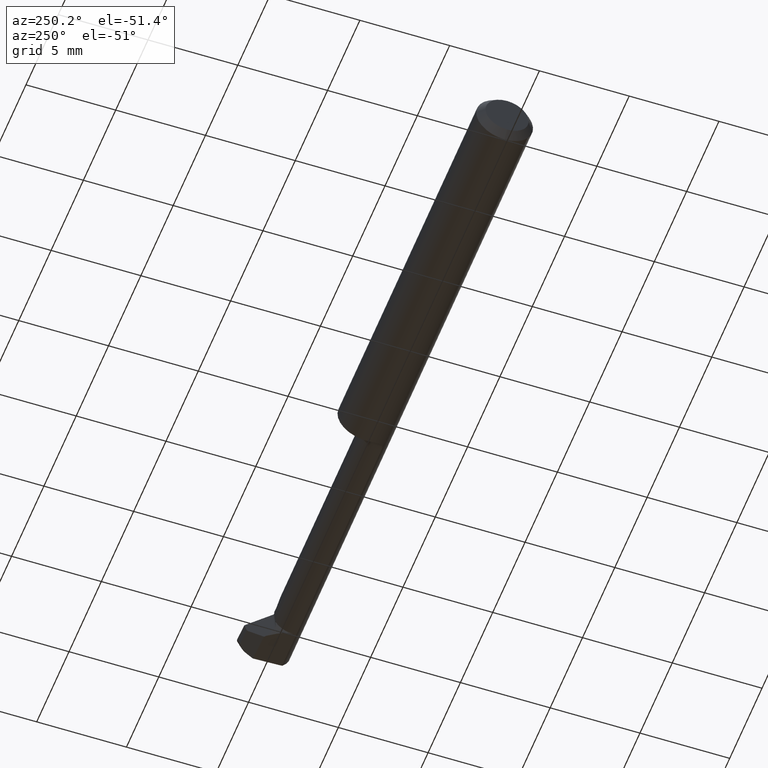
[diagram: clean part render]
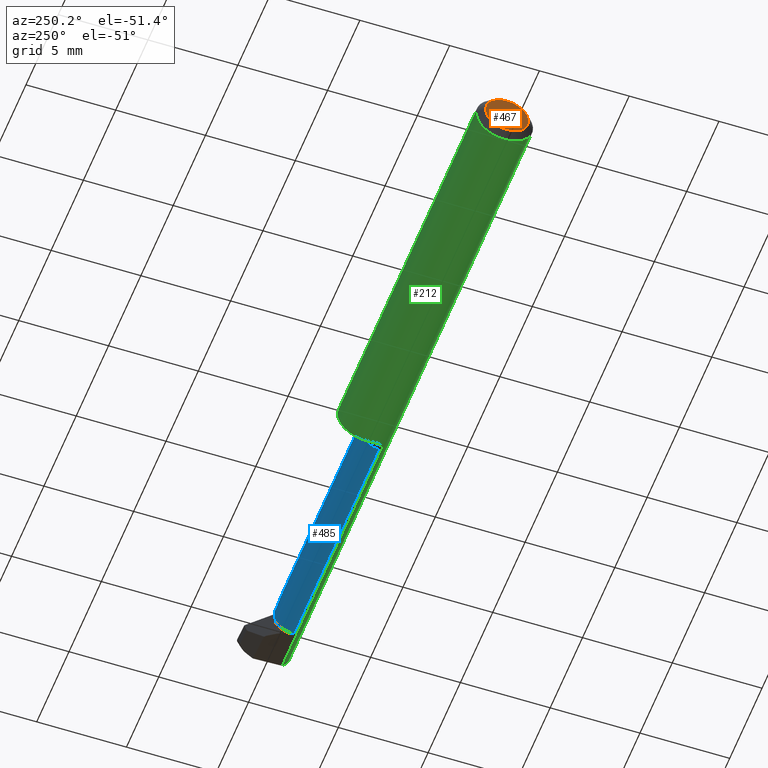
[diagram: same view with three faces highlighted in distinct colors, each labeled with its STEP entity id]
A machine part, auxiliary view with three faces highlighted in distinct colors.
Their STEP definitions:

[orange] entity #467 — the highlighted planar face has unit normal (1, 0, 0).
#20 = AXIS2_PLACEMENT_3D ( 'NONE', #597, #254, #532 ) ;
#35 = CIRCLE ( 'NONE', #778, 0.04734999999999873338 ) ;
#37 = DIRECTION ( 'NONE',  ( 0.000000000000000000, 0.000000000000000000, -1.000000000000000000 ) ) ;
#110 = EDGE_CURVE ( 'NONE', #149, #370, #245, .T. ) ;
#140 = ORIENTED_EDGE ( 'NONE', *, *, #211, .T. ) ;
#149 = VERTEX_POINT ( 'NONE', #788 ) ;
#211 = EDGE_CURVE ( 'NONE', #370, #149, #35, .T. ) ;
#245 = CIRCLE ( 'NONE', #393, 0.04734999999999873338 ) ;
#254 = DIRECTION ( 'NONE',  ( 1.000000000000000000, 0.000000000000000000, 0.000000000000000000 ) ) ;
#309 = DIRECTION ( 'NONE',  ( 0.000000000000000000, 0.000000000000000000, -1.000000000000000000 ) ) ;
#370 = VERTEX_POINT ( 'NONE', #414 ) ;
#379 = DIRECTION ( 'NONE',  ( -1.000000000000000000, -0.000000000000000000, -0.000000000000000000 ) ) ;
#393 = AXIS2_PLACEMENT_3D ( 'NONE', #655, #721, #309 ) ;
#414 = CARTESIAN_POINT ( 'NONE',  ( 0.000000000000000000, 0.000000000000000000, -0.04734999999999873338 ) ) ;
#467 = ADVANCED_FACE ( 'NONE', ( #684 ), #885, .F. ) ;
#521 = ORIENTED_EDGE ( 'NONE', *, *, #110, .T. ) ;
#532 = DIRECTION ( 'NONE',  ( 0.000000000000000000, 0.000000000000000000, -1.000000000000000000 ) ) ;
#597 = CARTESIAN_POINT ( 'NONE',  ( 0.000000000000000000, 0.000000000000000000, 0.000000000000000000 ) ) ;
#655 = CARTESIAN_POINT ( 'NONE',  ( 0.000000000000000000, 0.000000000000000000, 0.000000000000000000 ) ) ;
#684 = FACE_OUTER_BOUND ( 'NONE', #883, .T. ) ;
#721 = DIRECTION ( 'NONE',  ( -1.000000000000000000, -0.000000000000000000, -0.000000000000000000 ) ) ;
#729 = CARTESIAN_POINT ( 'NONE',  ( 0.000000000000000000, 0.000000000000000000, 0.000000000000000000 ) ) ;
#778 = AXIS2_PLACEMENT_3D ( 'NONE', #729, #379, #37 ) ;
#788 = CARTESIAN_POINT ( 'NONE',  ( 0.000000000000000000, 6.717187693323156762E-18, 0.04734999999999873338 ) ) ;
#883 = EDGE_LOOP ( 'NONE', ( #140, #521 ) ) ;
#885 = PLANE ( 'NONE',  #20 ) ;

[blue] entity #485 — the highlighted cylindrical surface (edge-blend (fillet) strip) has radius 1.143 mm, axis along (-1, -0, -0).
#1 = CARTESIAN_POINT ( 'NONE',  ( 1.401350579081468650, 0.003486539450863538215, -0.01892342304111742715 ) ) ;
#14 = CARTESIAN_POINT ( 'NONE',  ( 1.380000000000000115, 0.007649999999999997947, -1.868634782302818344E-17 ) ) ;
#30 = VERTEX_POINT ( 'NONE', #617 ) ;
#36 = CARTESIAN_POINT ( 'NONE',  ( 0.8600000000000000977, -0.03735000000000000125, 0.04499999999999999833 ) ) ;
#38 = ORIENTED_EDGE ( 'NONE', *, *, #84, .F. ) ;
#42 = LINE ( 'NONE', #192, #524 ) ;
#45 = AXIS2_PLACEMENT_3D ( 'NONE', #331, #257, #249 ) ;
#46 = EDGE_LOOP ( 'NONE', ( #474, #853, #219, #527, #38, #261, #360, #750 ) ) ;
#48 =( BOUNDED_CURVE ( )  B_SPLINE_CURVE ( 3, ( #565, #692, #292, #800 ),
 .UNSPECIFIED., .F., .T. ) 
 B_SPLINE_CURVE_WITH_KNOTS ( ( 4, 4 ),
 ( 4.720166836582523118, 6.283185307179586232 ),
 .UNSPECIFIED. ) 
 CURVE ( )  GEOMETRIC_REPRESENTATION_ITEM ( )  RATIONAL_B_SPLINE_CURVE ( ( 1.000000000000000000, 0.8065675430899293952, 0.8065675430899293952, 1.000000000000000000 ) ) 
 REPRESENTATION_ITEM ( '' )  );
#59 = VERTEX_POINT ( 'NONE', #214 ) ;
#61 = FACE_OUTER_BOUND ( 'NONE', #46, .T. ) ;
#84 = EDGE_CURVE ( 'NONE', #596, #359, #48, .T. ) ;
#91 = VECTOR ( 'NONE', #307, 39.37007874015748143 ) ;
#127 = CARTESIAN_POINT ( 'NONE',  ( 1.402482774987279468, 0.002744709503446783085, -0.02044830466687256459 ) ) ;
#158 = LINE ( 'NONE', #869, #418 ) ;
#159 = CIRCLE ( 'NONE', #628, 0.04499999999999999833 ) ;
#192 = CARTESIAN_POINT ( 'NONE',  ( 0.8600000000000000977, 0.007649999999999989274, -1.868634782302817419E-17 ) ) ;
#196 = CARTESIAN_POINT ( 'NONE',  ( 1.397039517213081172, 0.007649999999999997080, -0.002019801705302697210 ) ) ;
#205 = CARTESIAN_POINT ( 'NONE',  ( 1.398223997914590067, 0.006591716029849268958, -0.009896438192275340204 ) ) ;
#214 = CARTESIAN_POINT ( 'NONE',  ( 0.8850000000000001199, -0.03735000000000000125, 0.04499999999999999833 ) ) ;
#219 = ORIENTED_EDGE ( 'NONE', *, *, #651, .T. ) ;
#238 = DIRECTION ( 'NONE',  ( 0.000000000000000000, 0.000000000000000000, -1.000000000000000000 ) ) ;
#246 = VERTEX_POINT ( 'NONE', #537 ) ;
#249 = DIRECTION ( 'NONE',  ( 0.000000000000000000, 0.000000000000000000, 1.000000000000000000 ) ) ;
#250 = CARTESIAN_POINT ( 'NONE',  ( 1.397066040902762429, 0.007649999999999996213, -1.936423210115213672E-17 ) ) ;
#257 = DIRECTION ( 'NONE',  ( -1.000000000000000000, -0.000000000000000000, -0.000000000000000000 ) ) ;
#261 = ORIENTED_EDGE ( 'NONE', *, *, #391, .T. ) ;
#270 = CARTESIAN_POINT ( 'NONE',  ( 1.404132861531662391, 0.002182026386792876912, -0.02149927649373543914 ) ) ;
#283 = VERTEX_POINT ( 'NONE', #250 ) ;
#284 = DIRECTION ( 'NONE',  ( -1.000000000000000000, -0.000000000000000000, -0.000000000000000000 ) ) ;
#288 = CIRCLE ( 'NONE', #802, 0.04499999999999999833 ) ;
#292 = CARTESIAN_POINT ( 'NONE',  ( 1.335350000000000259, -0.01115188827315669734, 0.04500000000000000527 ) ) ;
#307 = DIRECTION ( 'NONE',  ( -1.000000000000000000, -0.000000000000000000, -0.000000000000000000 ) ) ;
#325 = EDGE_CURVE ( 'NONE', #30, #283, #568, .T. ) ;
#331 = CARTESIAN_POINT ( 'NONE',  ( 0.8600000000000000977, -0.03735000000000000125, 0.000000000000000000 ) ) ;
#359 = VERTEX_POINT ( 'NONE', #544 ) ;
#360 = ORIENTED_EDGE ( 'NONE', *, *, #497, .T. ) ;
#390 = AXIS2_PLACEMENT_3D ( 'NONE', #636, #284, #765 ) ;
#391 = EDGE_CURVE ( 'NONE', #596, #573, #159, .T. ) ;
#410 = CARTESIAN_POINT ( 'NONE',  ( 1.397066040902762429, 0.007649999999999996213, -1.936423210115213672E-17 ) ) ;
#418 = VECTOR ( 'NONE', #589, 39.37007874015748143 ) ;
#473 = CARTESIAN_POINT ( 'NONE',  ( 1.399739359179261067, 0.004929413038938467578, -0.01552075766390207355 ) ) ;
#474 = ORIENTED_EDGE ( 'NONE', *, *, #526, .T. ) ;
#475 = CARTESIAN_POINT ( 'NONE',  ( 1.399173535983480487, 0.005569146137534801769, -0.01366604519846065235 ) ) ;
#485 = ADVANCED_FACE ( 'NONE', ( #61 ), #890, .T. ) ;
#497 = EDGE_CURVE ( 'NONE', #573, #283, #42, .T. ) ;
#524 = VECTOR ( 'NONE', #540, 39.37007874015748143 ) ;
#526 = EDGE_CURVE ( 'NONE', #30, #246, #671, .T. ) ;
#527 = ORIENTED_EDGE ( 'NONE', *, *, #811, .F. ) ;
#537 = CARTESIAN_POINT ( 'NONE',  ( 1.404132861531758980, -0.03735000000000000125, -0.04499999999999999833 ) ) ;
#540 = DIRECTION ( 'NONE',  ( 1.000000000000000000, 0.000000000000000000, 0.000000000000000000 ) ) ;
#544 = CARTESIAN_POINT ( 'NONE',  ( 1.335350000000000259, -0.03735000000000000125, 0.04499999999999999833 ) ) ;
#553 = CARTESIAN_POINT ( 'NONE',  ( 1.380000000000000115, -0.03735000000000000125, 0.000000000000000000 ) ) ;
#565 = CARTESIAN_POINT ( 'NONE',  ( 1.380000000000000115, 0.007648638868303581952, 0.0003499999999997142008 ) ) ;
#568 = B_SPLINE_CURVE_WITH_KNOTS ( 'NONE', 3,
 ( #270, #903, #127, #1, #695, #473, #475, #205, #762, #756, #196, #410 ),
 .UNSPECIFIED., .F., .F.,
 ( 4, 2, 2, 2, 2, 4 ),
 ( 0.0001865874680042602584, 0.0002643423259053644743, 0.0003420971838064688257, 0.0004976068996086775286, 0.0006531166154108862315, 0.0008086263312130949343 ),
 .UNSPECIFIED. ) ;
#573 = VERTEX_POINT ( 'NONE', #14 ) ;
#589 = DIRECTION ( 'NONE',  ( -1.000000000000000000, -0.000000000000000000, -0.000000000000000000 ) ) ;
#596 = VERTEX_POINT ( 'NONE', #850 ) ;
#617 = CARTESIAN_POINT ( 'NONE',  ( 1.404132861531662391, 0.002182026386792876912, -0.02149927649373543914 ) ) ;
#628 = AXIS2_PLACEMENT_3D ( 'NONE', #553, #681, #898 ) ;
#636 = CARTESIAN_POINT ( 'NONE',  ( 1.404132861531758980, -0.03735000000000000125, 0.000000000000000000 ) ) ;
#651 = EDGE_CURVE ( 'NONE', #857, #59, #288, .T. ) ;
#670 = CARTESIAN_POINT ( 'NONE',  ( 0.8850000000000001199, -0.03734999999999999432, -0.04499999999999999833 ) ) ;
#671 = CIRCLE ( 'NONE', #390, 0.04499999999999999833 ) ;
#681 = DIRECTION ( 'NONE',  ( -1.000000000000000000, -0.000000000000000000, -0.000000000000000000 ) ) ;
#692 = CARTESIAN_POINT ( 'NONE',  ( 1.353802680697162808, 0.007444875777094868592, 0.02654731930283741465 ) ) ;
#695 = CARTESIAN_POINT ( 'NONE',  ( 1.400906135831871291, 0.003863475228141761454, -0.01809171442854520459 ) ) ;
#719 = DIRECTION ( 'NONE',  ( 1.000000000000000000, 0.000000000000000000, 0.000000000000000000 ) ) ;
#727 = LINE ( 'NONE', #36, #91 ) ;
#739 = EDGE_CURVE ( 'NONE', #246, #857, #158, .T. ) ;
#750 = ORIENTED_EDGE ( 'NONE', *, *, #325, .F. ) ;
#756 = CARTESIAN_POINT ( 'NONE',  ( 1.397257562772187045, 0.007511563477121007380, -0.004045391895746219130 ) ) ;
#762 = CARTESIAN_POINT ( 'NONE',  ( 1.397843281186097908, 0.006982471387518607991, -0.007972267800116273478 ) ) ;
#765 = DIRECTION ( 'NONE',  ( 0.000000000000000000, 0.000000000000000000, 1.000000000000000000 ) ) ;
#800 = CARTESIAN_POINT ( 'NONE',  ( 1.335350000000000259, -0.03735000000000000125, 0.04499999999999999833 ) ) ;
#802 = AXIS2_PLACEMENT_3D ( 'NONE', #858, #719, #238 ) ;
#811 = EDGE_CURVE ( 'NONE', #359, #59, #727, .T. ) ;
#850 = CARTESIAN_POINT ( 'NONE',  ( 1.380000000000000115, 0.007648638868303581952, 0.0003499999999997142008 ) ) ;
#853 = ORIENTED_EDGE ( 'NONE', *, *, #739, .T. ) ;
#857 = VERTEX_POINT ( 'NONE', #670 ) ;
#858 = CARTESIAN_POINT ( 'NONE',  ( 0.8850000000000001199, -0.03735000000000000125, 0.000000000000000000 ) ) ;
#869 = CARTESIAN_POINT ( 'NONE',  ( 0.8600000000000000977, -0.03734999999999999432, -0.04499999999999999833 ) ) ;
#890 = CYLINDRICAL_SURFACE ( 'NONE', #45, 0.04499999999999999833 ) ;
#898 = DIRECTION ( 'NONE',  ( 0.000000000000000000, 0.000000000000000000, 1.000000000000000000 ) ) ;
#903 = CARTESIAN_POINT ( 'NONE',  ( 1.403166806175291770, 0.002344048466815880707, -0.02120135664773389883 ) ) ;

[green] entity #212 — the highlighted cylindrical surface (edge-blend (fillet) strip) has radius 1.5837 mm, axis along (-1, -0, -0).
#2 = AXIS2_PLACEMENT_3D ( 'NONE', #528, #807, #124 ) ;
#10 = CARTESIAN_POINT ( 'NONE',  ( 0.8701006002414425344, -0.03734999999999997350, 0.04992494366546647994 ) ) ;
#29 = EDGE_CURVE ( 'NONE', #50, #550, #375, .T. ) ;
#34 = ORIENTED_EDGE ( 'NONE', *, *, #455, .T. ) ;
#40 = VERTEX_POINT ( 'NONE', #282 ) ;
#41 = CARTESIAN_POINT ( 'NONE',  ( 1.493725782297394389, -0.06234999999999974590, -0.01700082242080195108 ) ) ;
#43 = EDGE_CURVE ( 'NONE', #50, #770, #424, .T. ) ;
#50 = VERTEX_POINT ( 'NONE', #417 ) ;
#53 =( BOUNDED_CURVE ( )  B_SPLINE_CURVE ( 3, ( #259, #54, #891, #451 ),
 .UNSPECIFIED., .F., .F. ) 
 B_SPLINE_CURVE_WITH_KNOTS ( ( 4, 4 ),
 ( 4.718002482199790570, 5.508610201562717634 ),
 .UNSPECIFIED. ) 
 CURVE ( )  GEOMETRIC_REPRESENTATION_ITEM ( )  RATIONAL_B_SPLINE_CURVE ( ( 1.000000000000000000, 0.9485863960405191975, 0.9485863960405191975, 1.000000000000000000 ) ) 
 REPRESENTATION_ITEM ( '' )  );
#54 = CARTESIAN_POINT ( 'NONE',  ( 1.363125839995406485, -0.06225429351182320409, 0.01722416000459342164 ) ) ;
#55 = EDGE_CURVE ( 'NONE', #442, #394, #697, .T. ) ;
#75 = VECTOR ( 'NONE', #781, 39.37007874015748143 ) ;
#81 = CARTESIAN_POINT ( 'NONE',  ( 0.01500000000000107150, -0.03386738844375219992, 0.05235000000000000764 ) ) ;
#95 = CARTESIAN_POINT ( 'NONE',  ( 0.01500000000000106977, 0.000000000000000000, -0.06235000000000000264 ) ) ;
#97 = LINE ( 'NONE', #372, #702 ) ;
#98 = ORIENTED_EDGE ( 'NONE', *, *, #505, .T. ) ;
#106 = AXIS2_PLACEMENT_3D ( 'NONE', #595, #821, #808 ) ;
#109 = CARTESIAN_POINT ( 'NONE',  ( 1.495813220813313693, -0.06235000000000000264, -2.641722387191573529E-17 ) ) ;
#124 = DIRECTION ( 'NONE',  ( 0.000000000000000000, 0.000000000000000000, -1.000000000000000000 ) ) ;
#131 = B_SPLINE_CURVE_WITH_KNOTS ( 'NONE', 3,
 ( #400, #824, #880, #396, #181, #678 ),
 .UNSPECIFIED., .F., .F.,
 ( 4, 2, 4 ),
 ( 0.0009343328417634784314, 0.001154766650079300282, 0.001375200458395122024 ),
 .UNSPECIFIED. ) ;
#156 = VERTEX_POINT ( 'NONE', #582 ) ;
#178 = CARTESIAN_POINT ( 'NONE',  ( 1.495813220813313693, -0.06235000000000000264, -2.641722387191573529E-17 ) ) ;
#181 = CARTESIAN_POINT ( 'NONE',  ( 0.8820351742589956912, -0.04360836680053546688, -0.04456268444550840618 ) ) ;
#188 = B_SPLINE_CURVE_WITH_KNOTS ( 'NONE', 3,
 ( #392, #382, #189, #663, #607, #255, #263, #312 ),
 .UNSPECIFIED., .F., .F.,
 ( 4, 2, 2, 4 ),
 ( 0.000000000000000000, 0.0004671664208817392157, 0.0007007496313226088507, 0.0009343328417634784314 ),
 .UNSPECIFIED. ) ;
#189 = CARTESIAN_POINT ( 'NONE',  ( 0.8606286076433863341, -0.01732626571922309469, -0.06019274667599959494 ) ) ;
#197 = EDGE_CURVE ( 'NONE', #293, #499, #97, .T. ) ;
#199 = CARTESIAN_POINT ( 'NONE',  ( 1.491000998396268429, -0.04360836680053547382, -0.04456268444550840618 ) ) ;
#208 = DIRECTION ( 'NONE',  ( 0.000000000000000000, 0.000000000000000000, 1.000000000000000000 ) ) ;
#212 = ADVANCED_FACE ( 'NONE', ( #590 ), #870, .T. ) ;
#223 = EDGE_CURVE ( 'NONE', #555, #770, #53, .T. ) ;
#224 = ORIENTED_EDGE ( 'NONE', *, *, #43, .F. ) ;
#230 = CIRCLE ( 'NONE', #507, 0.06235000000000000264 ) ;
#239 = EDGE_CURVE ( 'NONE', #567, #680, #895, .T. ) ;
#241 = CARTESIAN_POINT ( 'NONE',  ( 1.500000000000000222, 0.000000000000000000, 0.000000000000000000 ) ) ;
#243 = DIRECTION ( 'NONE',  ( 0.000000000000000000, 0.000000000000000000, -1.000000000000000000 ) ) ;
#255 = CARTESIAN_POINT ( 'NONE',  ( 0.8665658476514228603, -0.03317735511194547932, -0.05286449629598390099 ) ) ;
#259 = CARTESIAN_POINT ( 'NONE',  ( 1.380000000000000115, -0.06234901763460271723, 0.0003499999999996106052 ) ) ;
#263 = CARTESIAN_POINT ( 'NONE',  ( 0.8681596223425047665, -0.03542442886268737379, -0.05136550777428175452 ) ) ;
#264 = ORIENTED_EDGE ( 'NONE', *, *, #239, .T. ) ;
#266 = CARTESIAN_POINT ( 'NONE',  ( 0.8680556789433141462, -0.03511735049662948610, 0.05154134765263149176 ) ) ;
#282 = CARTESIAN_POINT ( 'NONE',  ( 0.8600000000000000977, 0.03386738844375219992, 0.05235000000000000764 ) ) ;
#287 = CARTESIAN_POINT ( 'NONE',  ( 1.380000000000000115, 0.000000000000000000, 0.000000000000000000 ) ) ;
#289 = VECTOR ( 'NONE', #843, 39.37007874015748143 ) ;
#293 = VERTEX_POINT ( 'NONE', #178 ) ;
#297 = ORIENTED_EDGE ( 'NONE', *, *, #412, .T. ) ;
#303 = VECTOR ( 'NONE', #477, 39.37007874015748143 ) ;
#305 = EDGE_CURVE ( 'NONE', #634, #772, #188, .T. ) ;
#306 = ORIENTED_EDGE ( 'NONE', *, *, #29, .T. ) ;
#312 = CARTESIAN_POINT ( 'NONE',  ( 0.8701006002414425344, -0.03734999999999998044, -0.04992494366546647994 ) ) ;
#339 = CARTESIAN_POINT ( 'NONE',  ( 0.8701006002414425344, -0.03734999999999997350, 0.04992494366546647994 ) ) ;
#346 = EDGE_CURVE ( 'NONE', #550, #156, #489, .T. ) ;
#348 = CARTESIAN_POINT ( 'NONE',  ( 0.8701006002414425344, -0.03734999999999997350, 0.04992494366546647994 ) ) ;
#372 = CARTESIAN_POINT ( 'NONE',  ( 1.500000000000000222, -0.06234999999999998183, -1.868634782302817419E-17 ) ) ;
#375 = B_SPLINE_CURVE_WITH_KNOTS ( 'NONE', 3,
 ( #638, #777, #560, #492, #622, #348 ),
 .UNSPECIFIED., .F., .F.,
 ( 4, 2, 4 ),
 ( 0.000000000000000000, 0.0002221506711813068277, 0.0004443013423626136554 ),
 .UNSPECIFIED. ) ;
#382 = CARTESIAN_POINT ( 'NONE',  ( 0.8599999999999999867, -0.01131810390793744521, -0.06162862082500812633 ) ) ;
#392 = CARTESIAN_POINT ( 'NONE',  ( 0.8600000000000000977, -0.005121084337349387713, -0.06213933532964248385 ) ) ;
#394 = VERTEX_POINT ( 'NONE', #472 ) ;
#396 = CARTESIAN_POINT ( 'NONE',  ( 0.8791455925653405279, -0.04295461213018610808, -0.04521820499593317416 ) ) ;
#400 = CARTESIAN_POINT ( 'NONE',  ( 0.8701006002414425344, -0.03734999999999998044, -0.04992494366546647994 ) ) ;
#412 = EDGE_CURVE ( 'NONE', #156, #567, #740, .T. ) ;
#415 = ORIENTED_EDGE ( 'NONE', *, *, #223, .T. ) ;
#417 = CARTESIAN_POINT ( 'NONE',  ( 0.8850000000000001199, -0.04360836680053548076, 0.04456268444550838537 ) ) ;
#419 = ORIENTED_EDGE ( 'NONE', *, *, #197, .T. ) ;
#424 = LINE ( 'NONE', #835, #289 ) ;
#434 = CARTESIAN_POINT ( 'NONE',  ( 0.8701006002414425344, -0.03734999999999998044, -0.04992494366546647994 ) ) ;
#442 = VERTEX_POINT ( 'NONE', #199 ) ;
#451 = CARTESIAN_POINT ( 'NONE',  ( 1.335787315554491927, -0.04360836680053561953, 0.04456268444550823965 ) ) ;
#452 = ORIENTED_EDGE ( 'NONE', *, *, #730, .T. ) ;
#454 = DIRECTION ( 'NONE',  ( 1.000000000000000000, 0.000000000000000000, 0.000000000000000000 ) ) ;
#455 = EDGE_CURVE ( 'NONE', #772, #394, #131, .T. ) ;
#456 = CARTESIAN_POINT ( 'NONE',  ( 1.500000000000000222, -0.03386738844375219298, 0.05235000000000000764 ) ) ;
#466 = CARTESIAN_POINT ( 'NONE',  ( 1.380000000000000115, -0.06235000000000000264, -1.868634782302818344E-17 ) ) ;
#469 = DIRECTION ( 'NONE',  ( 0.000000000000000000, 0.000000000000000000, 1.000000000000000000 ) ) ;
#472 = CARTESIAN_POINT ( 'NONE',  ( 0.8850000000000001199, -0.04360836680053548076, -0.04456268444550838537 ) ) ;
#476 = AXIS2_PLACEMENT_3D ( 'NONE', #482, #454, #243 ) ;
#477 = DIRECTION ( 'NONE',  ( -1.000000000000000000, -0.000000000000000000, -0.000000000000000000 ) ) ;
#481 = CARTESIAN_POINT ( 'NONE',  ( 0.8690275097363903134, -0.03628542728876194001, 0.05072137502513257568 ) ) ;
#482 = CARTESIAN_POINT ( 'NONE',  ( 0.8600000000000000977, 0.000000000000000000, 0.000000000000000000 ) ) ;
#489 = B_SPLINE_CURVE_WITH_KNOTS ( 'NONE', 3,
 ( #339, #481, #266, #619 ),
 .UNSPECIFIED., .F., .F.,
 ( 4, 4 ),
 ( 0.0004443013423626136554, 0.0005742586930626218493 ),
 .UNSPECIFIED. ) ;
#492 = CARTESIAN_POINT ( 'NONE',  ( 0.8741188397736041615, -0.04073407580541828221, 0.04722823953826817828 ) ) ;
#494 = AXIS2_PLACEMENT_3D ( 'NONE', #241, #753, #469 ) ;
#499 = VERTEX_POINT ( 'NONE', #466 ) ;
#505 = EDGE_CURVE ( 'NONE', #680, #801, #859, .T. ) ;
#507 = AXIS2_PLACEMENT_3D ( 'NONE', #287, #838, #208 ) ;
#515 = CARTESIAN_POINT ( 'NONE',  ( 1.335787315554491927, -0.04360836680053561953, 0.04456268444550823965 ) ) ;
#528 = CARTESIAN_POINT ( 'NONE',  ( 0.01500000000000106977, 0.000000000000000000, 0.000000000000000000 ) ) ;
#545 = CARTESIAN_POINT ( 'NONE',  ( 1.132066430765879650, -0.04360836680053548076, -0.04456268444550838537 ) ) ;
#550 = VERTEX_POINT ( 'NONE', #10 ) ;
#555 = VERTEX_POINT ( 'NONE', #693 ) ;
#558 = CARTESIAN_POINT ( 'NONE',  ( 0.8600000000000000977, -0.005121084337349387713, -0.06213933532964248385 ) ) ;
#560 = CARTESIAN_POINT ( 'NONE',  ( 0.8791574905217302005, -0.04295758307481487015, 0.04521523634767359717 ) ) ;
#567 = VERTEX_POINT ( 'NONE', #81 ) ;
#572 = DIRECTION ( 'NONE',  ( -1.000000000000000000, -0.000000000000000000, -0.000000000000000000 ) ) ;
#581 =( BOUNDED_CURVE ( )  B_SPLINE_CURVE ( 3, ( #810, #884, #41, #109 ),
 .UNSPECIFIED., .F., .T. ) 
 B_SPLINE_CURVE_WITH_KNOTS ( ( 4, 4 ),
 ( 0.4955097310814783329, 1.291730952259495524 ),
 .UNSPECIFIED. ) 
 CURVE ( )  GEOMETRIC_REPRESENTATION_ITEM ( )  RATIONAL_B_SPLINE_CURVE ( ( 1.000000000000000000, 0.9478634083065206051, 0.9478634083065206051, 1.000000000000000000 ) ) 
 REPRESENTATION_ITEM ( '' )  );
#582 = CARTESIAN_POINT ( 'NONE',  ( 0.8671801011883747412, -0.03386738844375219298, 0.05235000000000000764 ) ) ;
#590 = FACE_OUTER_BOUND ( 'NONE', #876, .T. ) ;
#594 = EDGE_CURVE ( 'NONE', #499, #555, #230, .T. ) ;
#595 = CARTESIAN_POINT ( 'NONE',  ( 0.01500000000000106977, 0.000000000000000000, 0.000000000000000000 ) ) ;
#607 = CARTESIAN_POINT ( 'NONE',  ( 0.8639703683179056348, -0.02829598038873154184, -0.05563029170059014678 ) ) ;
#619 = CARTESIAN_POINT ( 'NONE',  ( 0.8671801011883747412, -0.03386738844375219298, 0.05235000000000000764 ) ) ;
#622 = CARTESIAN_POINT ( 'NONE',  ( 0.8719349541633377720, -0.03916979350186013814, 0.04856351424153122764 ) ) ;
#634 = VERTEX_POINT ( 'NONE', #558 ) ;
#638 = CARTESIAN_POINT ( 'NONE',  ( 0.8850000000000001199, -0.04360836680053548076, 0.04456268444550838537 ) ) ;
#646 = CARTESIAN_POINT ( 'NONE',  ( 0.01500000000000106977, 0.03386738844375219992, 0.05235000000000000764 ) ) ;
#649 = ORIENTED_EDGE ( 'NONE', *, *, #864, .F. ) ;
#663 = CARTESIAN_POINT ( 'NONE',  ( 0.8629699402100714511, -0.02567935165106224882, -0.05689511695062373503 ) ) ;
#669 = ORIENTED_EDGE ( 'NONE', *, *, #873, .T. ) ;
#678 = CARTESIAN_POINT ( 'NONE',  ( 0.8850000000000001199, -0.04360836680053548076, -0.04456268444550838537 ) ) ;
#680 = VERTEX_POINT ( 'NONE', #95 ) ;
#693 = CARTESIAN_POINT ( 'NONE',  ( 1.380000000000000115, -0.06234901763460271723, 0.0003499999999996106052 ) ) ;
#697 = LINE ( 'NONE', #545, #303 ) ;
#702 = VECTOR ( 'NONE', #572, 39.37007874015748143 ) ;
#730 = EDGE_CURVE ( 'NONE', #801, #40, #792, .T. ) ;
#731 = ORIENTED_EDGE ( 'NONE', *, *, #594, .T. ) ;
#740 = LINE ( 'NONE', #456, #748 ) ;
#748 = VECTOR ( 'NONE', #755, 39.37007874015748143 ) ;
#753 = DIRECTION ( 'NONE',  ( -1.000000000000000000, -0.000000000000000000, -0.000000000000000000 ) ) ;
#754 = ORIENTED_EDGE ( 'NONE', *, *, #346, .T. ) ;
#755 = DIRECTION ( 'NONE',  ( -1.000000000000000000, -0.000000000000000000, -0.000000000000000000 ) ) ;
#770 = VERTEX_POINT ( 'NONE', #515 ) ;
#772 = VERTEX_POINT ( 'NONE', #434 ) ;
#777 = CARTESIAN_POINT ( 'NONE',  ( 0.8820249534799456947, -0.04360836680053547382, 0.04456268444550839231 ) ) ;
#781 = DIRECTION ( 'NONE',  ( 1.000000000000000000, 0.000000000000000000, 0.000000000000000000 ) ) ;
#792 = LINE ( 'NONE', #866, #75 ) ;
#801 = VERTEX_POINT ( 'NONE', #646 ) ;
#807 = DIRECTION ( 'NONE',  ( 1.000000000000000000, -0.000000000000000000, -0.000000000000000000 ) ) ;
#808 = DIRECTION ( 'NONE',  ( 0.000000000000000000, 0.000000000000000000, -1.000000000000000000 ) ) ;
#810 = CARTESIAN_POINT ( 'NONE',  ( 1.491000998396268429, -0.04360836680053547382, -0.04456268444550840618 ) ) ;
#821 = DIRECTION ( 'NONE',  ( 1.000000000000000000, -0.000000000000000000, -0.000000000000000000 ) ) ;
#824 = CARTESIAN_POINT ( 'NONE',  ( 0.8719323121581191716, -0.03916717246797271623, -0.04856547509734465001 ) ) ;
#835 = CARTESIAN_POINT ( 'NONE',  ( 1.132066430765879650, -0.04360836680053548076, 0.04456268444550838537 ) ) ;
#838 = DIRECTION ( 'NONE',  ( -1.000000000000000000, -0.000000000000000000, -0.000000000000000000 ) ) ;
#843 = DIRECTION ( 'NONE',  ( 1.000000000000000000, 0.000000000000000000, 0.000000000000000000 ) ) ;
#846 = CIRCLE ( 'NONE', #476, 0.06235000000000000264 ) ;
#859 = CIRCLE ( 'NONE', #2, 0.06235000000000000264 ) ;
#864 = EDGE_CURVE ( 'NONE', #634, #40, #846, .T. ) ;
#866 = CARTESIAN_POINT ( 'NONE',  ( 1.500000000000000222, 0.03386738844375219298, 0.05235000000000000764 ) ) ;
#870 = CYLINDRICAL_SURFACE ( 'NONE', #494, 0.06235000000000000264 ) ;
#873 = EDGE_CURVE ( 'NONE', #442, #293, #581, .T. ) ;
#876 = EDGE_LOOP ( 'NONE', ( #900, #669, #419, #731, #415, #224, #306, #754, #297, #264, #98, #452, #649, #887, #34 ) ) ;
#880 = CARTESIAN_POINT ( 'NONE',  ( 0.8741018794472169562, -0.04072429879435931349, -0.04723681037090363827 ) ) ;
#884 = CARTESIAN_POINT ( 'NONE',  ( 1.492033477135110697, -0.05575916527450947013, -0.03267209743609288813 ) ) ;
#887 = ORIENTED_EDGE ( 'NONE', *, *, #305, .T. ) ;
#891 = CARTESIAN_POINT ( 'NONE',  ( 1.347589499243154076, -0.05566882735140734478, 0.03276050075684545232 ) ) ;
#895 = CIRCLE ( 'NONE', #106, 0.06235000000000000264 ) ;
#900 = ORIENTED_EDGE ( 'NONE', *, *, #55, .F. ) ;